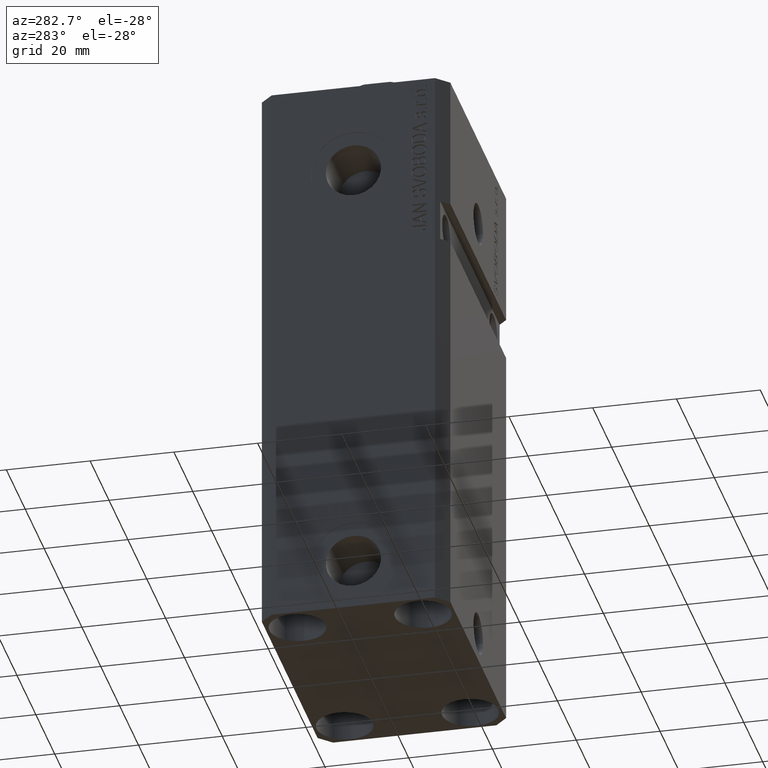
[diagram: clean part render]
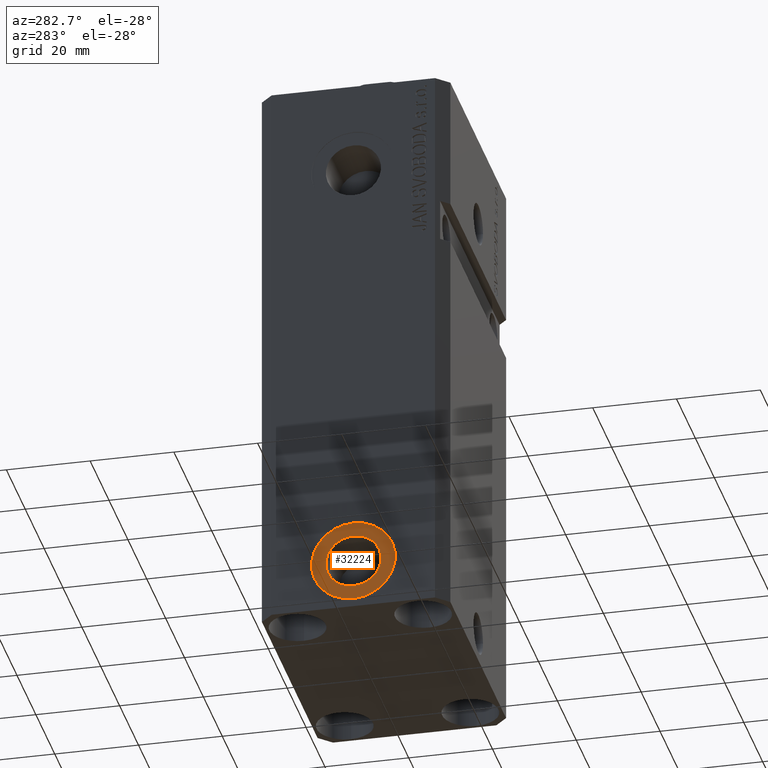
[diagram: same view with one face highlighted and labeled with its STEP entity id]
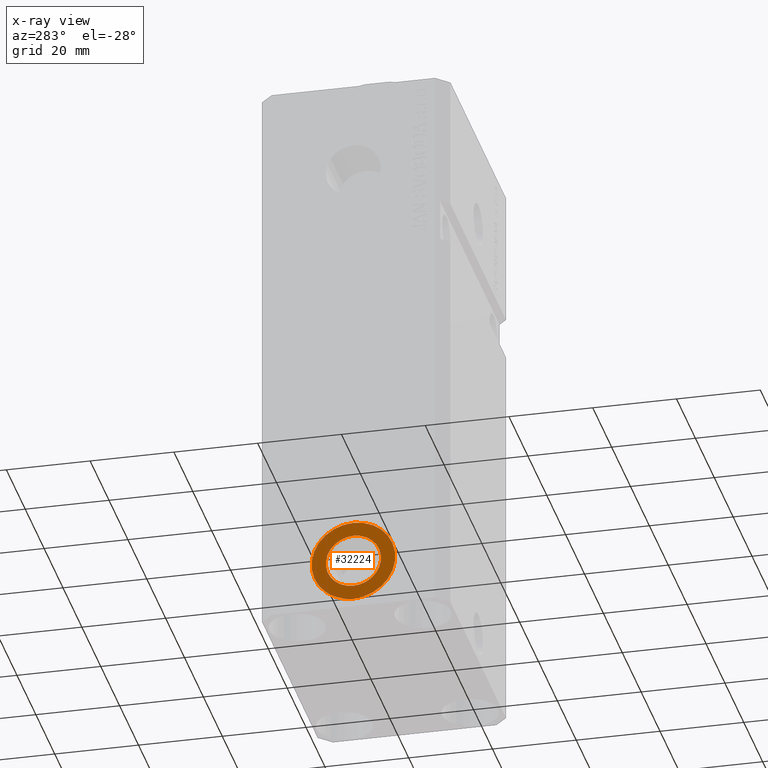
[diagram: x-ray of the same camera — body ghosted, the highlighted face saturated]
A machine part, auxiliary view. The second image highlights one B-rep face of the part: STEP entity #32224.
The next image is the same camera in x-ray: the body ghosted, the highlighted face saturated — about 0% of this face is hidden behind the body in this view.
In plain terms, the highlighted planar face has unit normal (-1, 0, 0).
Its self-contained STEP definition (entity closure, byte-faithful):
#403 = CARTESIAN_POINT ( 'NONE',  ( -32.39999999999650271, -1.408343819019456097E-14, -135.0000000000000000 ) ) ;
#937 = DIRECTION ( 'NONE',  ( 0.000000000000000000, 0.000000000000000000, 1.000000000000000000 ) ) ;
#2135 = DIRECTION ( 'NONE',  ( 0.000000000000000000, 0.000000000000000000, 1.000000000000000000 ) ) ;
#4986 = DIRECTION ( 'NONE',  ( -1.000000000000000000, 0.000000000000000000, 0.000000000000000000 ) ) ;
#6062 = AXIS2_PLACEMENT_3D ( 'NONE', #36634, #22081, #8566 ) ;
#6864 = VERTEX_POINT ( 'NONE', #403 ) ;
#8566 = DIRECTION ( 'NONE',  ( 0.000000000000000000, 0.000000000000000000, 1.000000000000000000 ) ) ;
#9101 = EDGE_CURVE ( 'NONE', #41265, #33086, #16335, .T. ) ;
#9320 = CARTESIAN_POINT ( 'NONE',  ( -32.39999999999650271, -1.530808498934191561E-14, -125.0000000000000000 ) ) ;
#9512 = CARTESIAN_POINT ( 'NONE',  ( -32.39999999999650271, -1.530808498934191561E-14, -125.0000000000000000 ) ) ;
#11046 = ORIENTED_EDGE ( 'NONE', *, *, #21734, .F. ) ;
#11082 = EDGE_CURVE ( 'NONE', #6864, #16441, #20724, .T. ) ;
#12018 = ORIENTED_EDGE ( 'NONE', *, *, #19288, .T. ) ;
#12243 = CARTESIAN_POINT ( 'NONE',  ( -32.39999999999650271, -1.450226739550295657E-14, -131.5800000000000125 ) ) ;
#16335 = CIRCLE ( 'NONE', #41423, 6.580000000000002736 ) ;
#16441 = VERTEX_POINT ( 'NONE', #23336 ) ;
#16710 = EDGE_LOOP ( 'NONE', ( #12018, #21550 ) ) ;
#19288 = EDGE_CURVE ( 'NONE', #16441, #6864, #26905, .T. ) ;
#20724 = CIRCLE ( 'NONE', #43637, 9.999999999999994671 ) ;
#21550 = ORIENTED_EDGE ( 'NONE', *, *, #11082, .T. ) ;
#21734 = EDGE_CURVE ( 'NONE', #33086, #41265, #36282, .T. ) ;
#22081 = DIRECTION ( 'NONE',  ( -1.000000000000000000, 0.000000000000000000, 0.000000000000000000 ) ) ;
#22445 = EDGE_LOOP ( 'NONE', ( #11046, #39416 ) ) ;
#23231 = CARTESIAN_POINT ( 'NONE',  ( -32.39999999999650271, -1.530808498934191561E-14, -118.4200000000000017 ) ) ;
#23246 = DIRECTION ( 'NONE',  ( -1.000000000000000000, 0.000000000000000000, 0.000000000000000000 ) ) ;
#23336 = CARTESIAN_POINT ( 'NONE',  ( -32.39999999999650271, -1.530808498934191561E-14, -115.0000000000000000 ) ) ;
#24133 = CARTESIAN_POINT ( 'NONE',  ( -32.39999999999650271, -1.530808498934191561E-14, -125.0000000000000000 ) ) ;
#26622 = FACE_BOUND ( 'NONE', #22445, .T. ) ;
#26905 = CIRCLE ( 'NONE', #6062, 9.999999999999994671 ) ;
#27055 = PLANE ( 'NONE',  #40742 ) ;
#27688 = AXIS2_PLACEMENT_3D ( 'NONE', #24133, #42060, #28183 ) ;
#28183 = DIRECTION ( 'NONE',  ( 0.000000000000000000, 0.000000000000000000, 1.000000000000000000 ) ) ;
#32224 = ADVANCED_FACE ( 'NONE', ( #26622, #40286 ), #27055, .T. ) ;
#32948 = DIRECTION ( 'NONE',  ( -1.000000000000000000, 0.000000000000000000, 0.000000000000000000 ) ) ;
#33086 = VERTEX_POINT ( 'NONE', #23231 ) ;
#35987 = CARTESIAN_POINT ( 'NONE',  ( -32.39999999999650271, -1.530808498934191561E-14, -125.0000000000000000 ) ) ;
#36282 = CIRCLE ( 'NONE', #27688, 6.580000000000002736 ) ;
#36634 = CARTESIAN_POINT ( 'NONE',  ( -32.39999999999650271, -1.530808498934191561E-14, -125.0000000000000000 ) ) ;
#36918 = DIRECTION ( 'NONE',  ( 0.000000000000000000, 0.000000000000000000, 1.000000000000000000 ) ) ;
#39416 = ORIENTED_EDGE ( 'NONE', *, *, #9101, .F. ) ;
#40286 = FACE_OUTER_BOUND ( 'NONE', #16710, .T. ) ;
#40742 = AXIS2_PLACEMENT_3D ( 'NONE', #9512, #23246, #36918 ) ;
#41265 = VERTEX_POINT ( 'NONE', #12243 ) ;
#41423 = AXIS2_PLACEMENT_3D ( 'NONE', #35987, #4986, #937 ) ;
#42060 = DIRECTION ( 'NONE',  ( -1.000000000000000000, 0.000000000000000000, 0.000000000000000000 ) ) ;
#43637 = AXIS2_PLACEMENT_3D ( 'NONE', #9320, #32948, #2135 ) ;